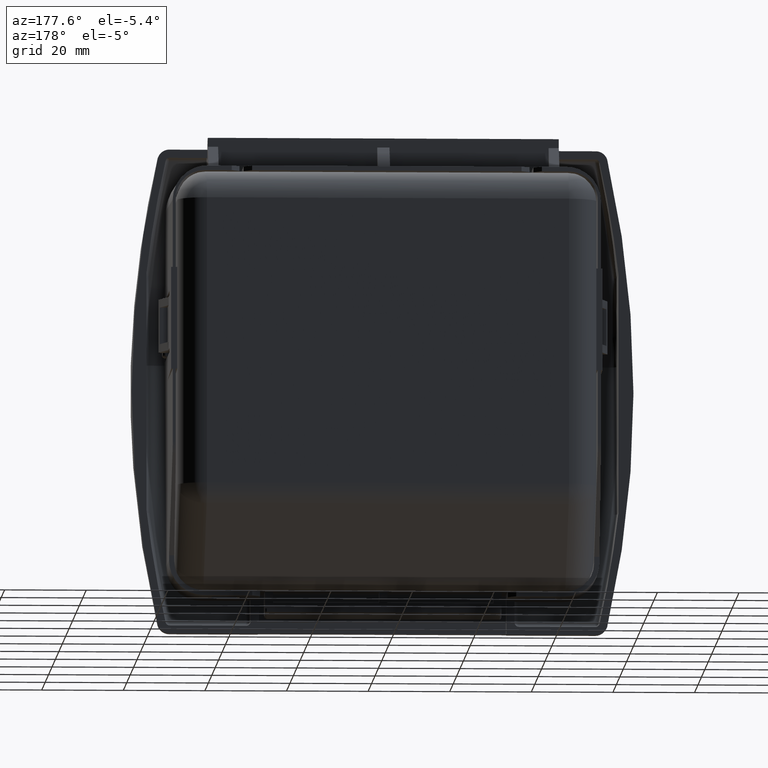
[diagram: clean part render]
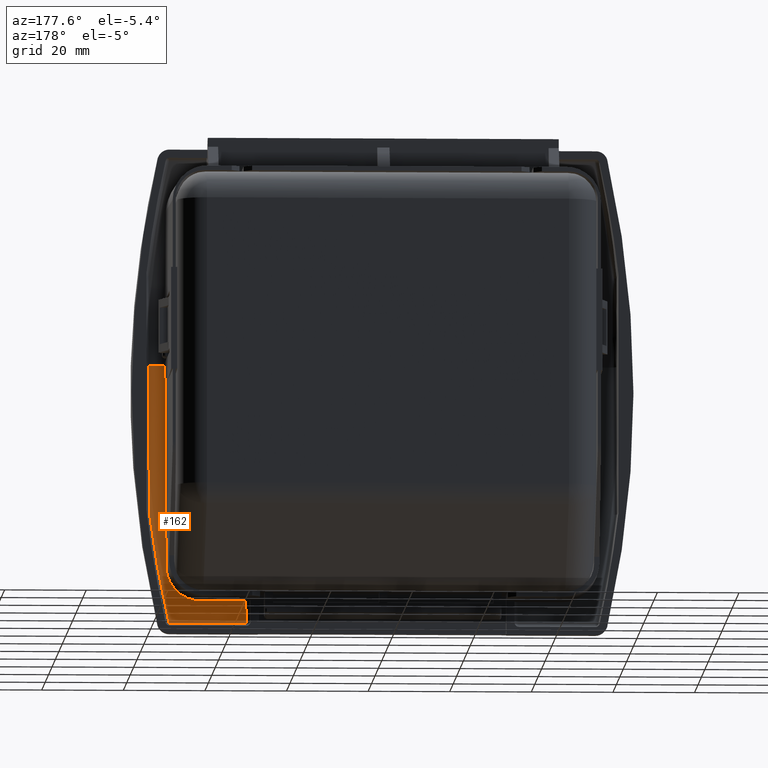
[diagram: same view with one face highlighted and labeled with its STEP entity id]
A machine part, auxiliary view. The second image highlights one B-rep face of the part: STEP entity #162.
In plain terms, the highlighted planar face has unit normal (0, 0.9894, 0.1452).
Its self-contained STEP definition (entity closure, byte-faithful):
#162=ADVANCED_FACE('',(#983),#982,.T.);
#982=PLANE('',#8081);
#983=FACE_OUTER_BOUND('',#8082,.T.);
#8078=CARTESIAN_POINT('',(-1.67500344491E+02,-1.95023949534E+00,-6.30606330041E+01));
#8079=DIRECTION('',(-0.00000000000E+00,9.89404774411E-01,1.45183306107E-01));
#8080=DIRECTION('',(0.00000000000E+00,-1.45183306107E-01,9.89404774411E-01));
#8081=AXIS2_PLACEMENT_3D('',#8078,#8079,#8080);
#8082=EDGE_LOOP('',(#16368,#16369,#16370,#16371,#16372,#16373,#16374,#16375));
#16368=ORIENTED_EDGE('',*,*,#19945,.T.);
#16369=ORIENTED_EDGE('',*,*,#19921,.F.);
#16370=ORIENTED_EDGE('',*,*,#19946,.T.);
#16371=ORIENTED_EDGE('',*,*,#19947,.F.);
#16372=ORIENTED_EDGE('',*,*,#19948,.F.);
#16373=ORIENTED_EDGE('',*,*,#19949,.F.);
#16374=ORIENTED_EDGE('',*,*,#19950,.F.);
#16375=ORIENTED_EDGE('',*,*,#19951,.F.);
#19921=EDGE_CURVE('',#21950,#21957,#21958,.T.);
#19945=EDGE_CURVE('',#22122,#21957,#22123,.T.);
#19946=EDGE_CURVE('',#21950,#22129,#22130,.T.);
#19947=EDGE_CURVE('',#22136,#22129,#22137,.T.);
#19948=EDGE_CURVE('',#22143,#22136,#22144,.T.);
#19949=EDGE_CURVE('',#22150,#22143,#22151,.T.);
#19950=EDGE_CURVE('',#22157,#22150,#22158,.T.);
#19951=EDGE_CURVE('',#22122,#22157,#22164,.T.);
#21950=VERTEX_POINT('',#33743);
#21957=VERTEX_POINT('',#33747);
#21958=(BOUNDED_CURVE() B_SPLINE_CURVE(2,(#33748,#33749,#33750),.UNSPECIFIED.,.F.,.F.) B_SPLINE_CURVE_WITH_KNOTS((3,3),(-4.71238898038E+00,-3.14159265355E+00),.UNSPECIFIED.) CURVE() GEOMETRIC_REPRESENTATION_ITEM() RATIONAL_B_SPLINE_CURVE((1.00000000000E+00,7.07106781174E-01,1.00000000000E+00)) REPRESENTATION_ITEM('') );
#22122=VERTEX_POINT('',#33841);
#22123=LINE('',#33842,#33843);
#22129=VERTEX_POINT('',#33845);
#22130=LINE('',#33846,#33847);
#22136=VERTEX_POINT('',#33849);
#22137=LINE('',#33850,#33851);
#22143=VERTEX_POINT('',#33853);
#22144=LINE('',#33854,#33855);
#22150=VERTEX_POINT('',#33857);
#22151=(BOUNDED_CURVE() B_SPLINE_CURVE(2,(#33858,#33859,#33860),.UNSPECIFIED.,.F.,.F.) B_SPLINE_CURVE_WITH_KNOTS((3,3),(-1.79245124912E+00,-1.68416097597E+00),.UNSPECIFIED.) CURVE() GEOMETRIC_REPRESENTATION_ITEM() RATIONAL_B_SPLINE_CURVE((1.00000000000E+00,9.98534510176E-01,1.00000000000E+00)) REPRESENTATION_ITEM('') );
#22157=VERTEX_POINT('',#33861);
#22158=LINE('',#33862,#33863);
#22164=LINE('',#33865,#33866);
#33743=CARTESIAN_POINT('',(-1.45650344491E+02,-4.95231672591E+00,-4.26018790006E+01));
#33747=CARTESIAN_POINT('',(-1.54150344491E+02,-3.70504348261E+00,-5.11018790006E+01));
#33748=CARTESIAN_POINT('',(-1.45650344491E+02,-4.95231672590E+00,-4.26018790006E+01));
#33749=CARTESIAN_POINT('',(-1.45650344491E+02,-3.70504348256E+00,-5.11018790009E+01));
#33750=CARTESIAN_POINT('',(-1.54150344491E+02,-3.70504348261E+00,-5.11018790006E+01));
#33841=CARTESIAN_POINT('',(-1.65150344491E+02,-3.70504348268E+00,-5.11018790001E+01));
#33842=CARTESIAN_POINT('',(-1.65150344491E+02,-3.70504348268E+00,-5.11018790001E+01));
#33843=VECTOR('',#33844,1.09999999997E+01);
#33844=DIRECTION('',(1.00000000000E+00,5.66544790894E-12,-3.86089544184E-11));
#33845=CARTESIAN_POINT('',(-1.45650344491E+02,-1.23055343510E+01,7.50931367449E+00));
#33846=CARTESIAN_POINT('',(-1.45650344491E+02,-4.95231672591E+00,-4.26018790006E+01));
#33847=VECTOR('',#33848,5.06478177295E+01);
#33848=DIRECTION('',(4.06731344382E-12,-1.45183306107E-01,9.89404774411E-01));
#33849=CARTESIAN_POINT('',(-1.41650344491E+02,-1.23055343510E+01,7.50931367449E+00));
#33850=CARTESIAN_POINT('',(-1.41650344491E+02,-1.23055343510E+01,7.50931367449E+00));
#33851=VECTOR('',#33852,3.99999999962E+00);
#33852=DIRECTION('',(-1.00000000000E+00,0.00000000000E+00,0.00000000000E+00));
#33853=CARTESIAN_POINT('',(-1.41650344491E+02,-6.91630914196E+00,-2.92175338891E+01));
#33854=CARTESIAN_POINT('',(-1.41650344491E+02,-6.91630914195E+00,-2.92175338891E+01));
#33855=VECTOR('',#33856,3.71201438617E+01);
#33856=DIRECTION('',(4.04119614764E-12,-1.45183306107E-01,9.89404774411E-01));
#33857=CARTESIAN_POINT('',(-1.46288204251E+02,-2.89162993676E+00,-5.66451833060E+01));
#33858=CARTESIAN_POINT('',(-1.46288204251E+02,-2.89162993677E+00,-5.66451833060E+01));
#33859=CARTESIAN_POINT('',(-1.43226010977E+02,-4.88552726634E+00,-4.30570402167E+01));
#33860=CARTESIAN_POINT('',(-1.41650344491E+02,-6.91630914196E+00,-2.92175338891E+01));
#33861=CARTESIAN_POINT('',(-1.65150344491E+02,-2.89162993676E+00,-5.66451833060E+01));
#33862=CARTESIAN_POINT('',(-1.65150344491E+02,-2.89162993676E+00,-5.66451833060E+01));
#33863=VECTOR('',#33864,1.88621402399E+01);
#33864=DIRECTION('',(1.00000000000E+00,0.00000000000E+00,0.00000000000E+00));
#33865=CARTESIAN_POINT('',(-1.65150344491E+02,-3.70504348266E+00,-5.11018790001E+01));
#33866=VECTOR('',#33867,5.60266581410E+00);
#33867=DIRECTION('',(0.00000000000E+00,1.45183306107E-01,-9.89404774411E-01));